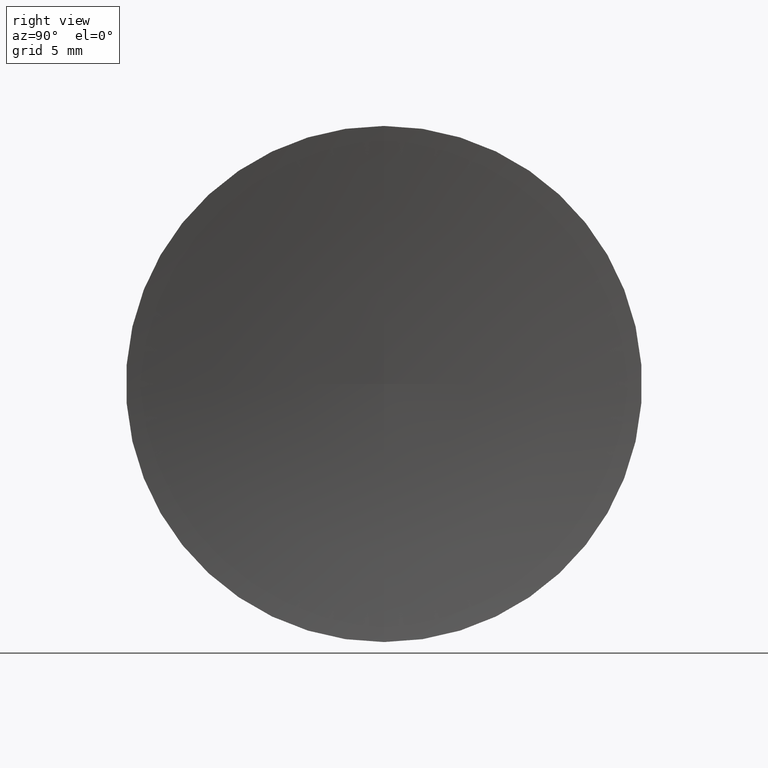
[diagram: clean part render]
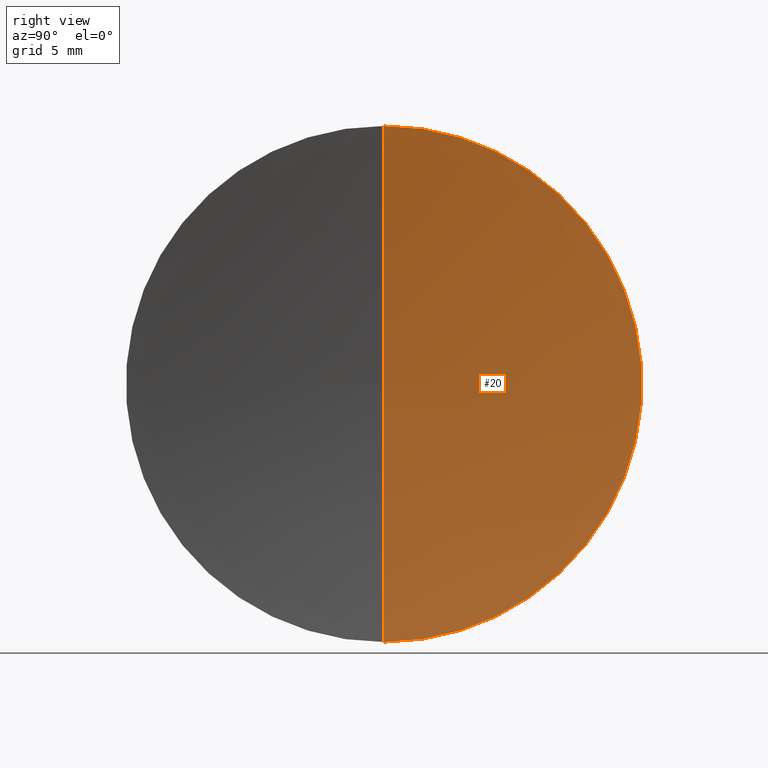
[diagram: same view with one face highlighted and labeled with its STEP entity id]
A machine part, right view. The second image highlights one B-rep face of the part: STEP entity #20.
In plain terms, the highlighted toroidal blend (fillet) surface has major radius 0.0786 mm and minor (blend) radius 82.62 mm.
Its self-contained STEP definition (entity closure, byte-faithful):
#1 = DIRECTION ( 'NONE',  ( 0.0000000000000000000, 0.0000000000000000000, -1.000000000000000000 ) ) ;
#5 = FACE_OUTER_BOUND ( 'NONE', #84, .T. ) ;
#8 = CARTESIAN_POINT ( 'NONE',  ( 142.1522996457801800, 32.61076812922678400, 0.0000000000000000000 ) ) ;
#20 = ADVANCED_FACE ( 'NONE', ( #5 ), #139, .F. ) ;
#21 = DIRECTION ( 'NONE',  ( 0.0000000000000000000, 0.0000000000000000000, 1.000000000000000000 ) ) ;
#25 = DIRECTION ( 'NONE',  ( -1.000000000000000000, -0.0000000000000000000, -0.0000000000000000000 ) ) ;
#34 = CARTESIAN_POINT ( 'NONE',  ( 142.1522996457801800, 32.61076812922678400, -0.07861990398175949800 ) ) ;
#38 = CARTESIAN_POINT ( 'NONE',  ( 60.47137337464728500, 32.61076812922678400, 0.0000000000000000000 ) ) ;
#40 = DIRECTION ( 'NONE',  ( 0.0000000000000000000, -1.000000000000000000, 0.0000000000000000000 ) ) ;
#41 = AXIS2_PLACEMENT_3D ( 'NONE', #117, #40, #1 ) ;
#45 = EDGE_CURVE ( 'NONE', #46, #141, #157, .T. ) ;
#46 = VERTEX_POINT ( 'NONE', #63 ) ;
#49 = DIRECTION ( 'NONE',  ( -0.0000000000000000000, 1.000000000000000000, 1.224646799147353200E-016 ) ) ;
#60 = EDGE_CURVE ( 'NONE', #163, #46, #65, .T. ) ;
#63 = CARTESIAN_POINT ( 'NONE',  ( 60.47137337464727800, 32.61076812922678400, -12.50000000000000400 ) ) ;
#65 = CIRCLE ( 'NONE', #134, 12.49999999999999600 ) ;
#66 = CARTESIAN_POINT ( 'NONE',  ( 60.47137337464727800, 32.61076812922678400, 12.50000000000000400 ) ) ;
#67 = AXIS2_PLACEMENT_3D ( 'NONE', #34, #49, #73 ) ;
#68 = CARTESIAN_POINT ( 'NONE',  ( 59.53233705252608800, 32.61076812922678400, 0.0000000000000000000 ) ) ;
#72 = EDGE_CURVE ( 'NONE', #163, #141, #164, .T. ) ;
#73 = DIRECTION ( 'NONE',  ( 0.0000000000000000000, -8.398564395917726000E-017, 1.000000000000000000 ) ) ;
#76 = DIRECTION ( 'NONE',  ( -1.000000000000000000, -0.0000000000000000000, -0.0000000000000000000 ) ) ;
#80 = AXIS2_PLACEMENT_3D ( 'NONE', #8, #76, #21 ) ;
#84 = EDGE_LOOP ( 'NONE', ( #108, #158, #88 ) ) ;
#88 = ORIENTED_EDGE ( 'NONE', *, *, #72, .T. ) ;
#108 = ORIENTED_EDGE ( 'NONE', *, *, #45, .F. ) ;
#113 = DIRECTION ( 'NONE',  ( 0.0000000000000000000, 0.0000000000000000000, 1.000000000000000000 ) ) ;
#117 = CARTESIAN_POINT ( 'NONE',  ( 142.1522996457801800, 32.61076812922678400, 0.07861990398175949800 ) ) ;
#134 = AXIS2_PLACEMENT_3D ( 'NONE', #38, #25, #113 ) ;
#139 = TOROIDAL_SURFACE ( 'NONE', #80, 0.07861990398175949800, 82.62000000000003300 ) ;
#141 = VERTEX_POINT ( 'NONE', #68 ) ;
#157 = CIRCLE ( 'NONE', #67, 82.62000000000003300 ) ;
#158 = ORIENTED_EDGE ( 'NONE', *, *, #60, .F. ) ;
#163 = VERTEX_POINT ( 'NONE', #66 ) ;
#164 = CIRCLE ( 'NONE', #41, 82.62000000000003300 ) ;